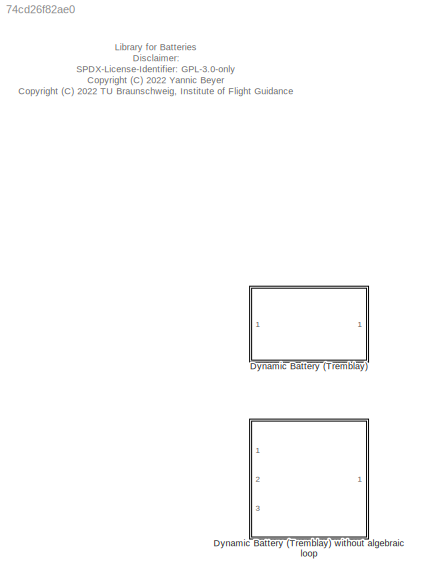
MODEL slx_74cd26f82ae0
KIND library
CONFIG AbsTol = auto
CONFIG EnableMultiTasking = off
CONFIG FixedStep = auto
CONFIG MaxStep = auto
CONFIG MinStep = auto
CONFIG RelTol = 1e-3
CONFIG SampleTimeConstraint = Unconstrained
CONFIG Solver = VariableStepAuto
CONFIG SolverName = VariableStepAuto
CONFIG StartTime = 0.0
CONFIG StopTime = 10.0
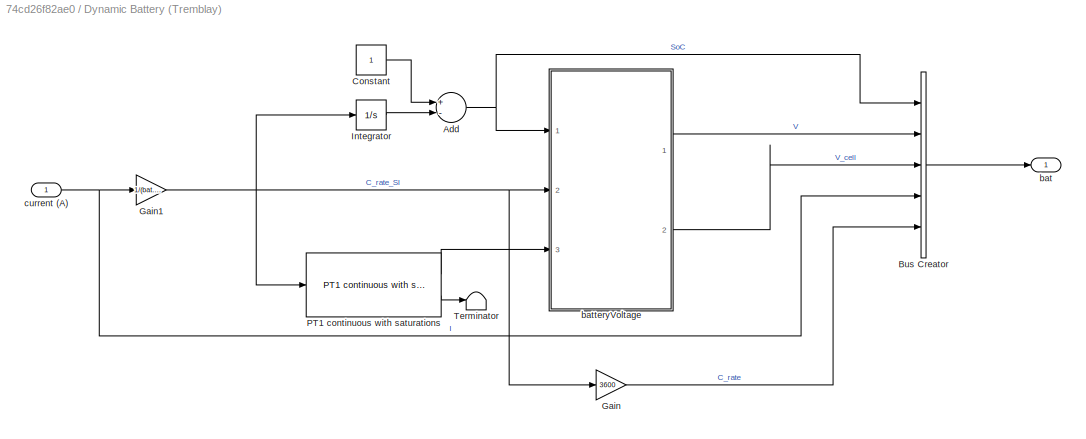
BLOCK [SubSystem] Dynamic Battery (Tremblay)
  Ports = [1, 1]
  RequestExecContextInheritance = off
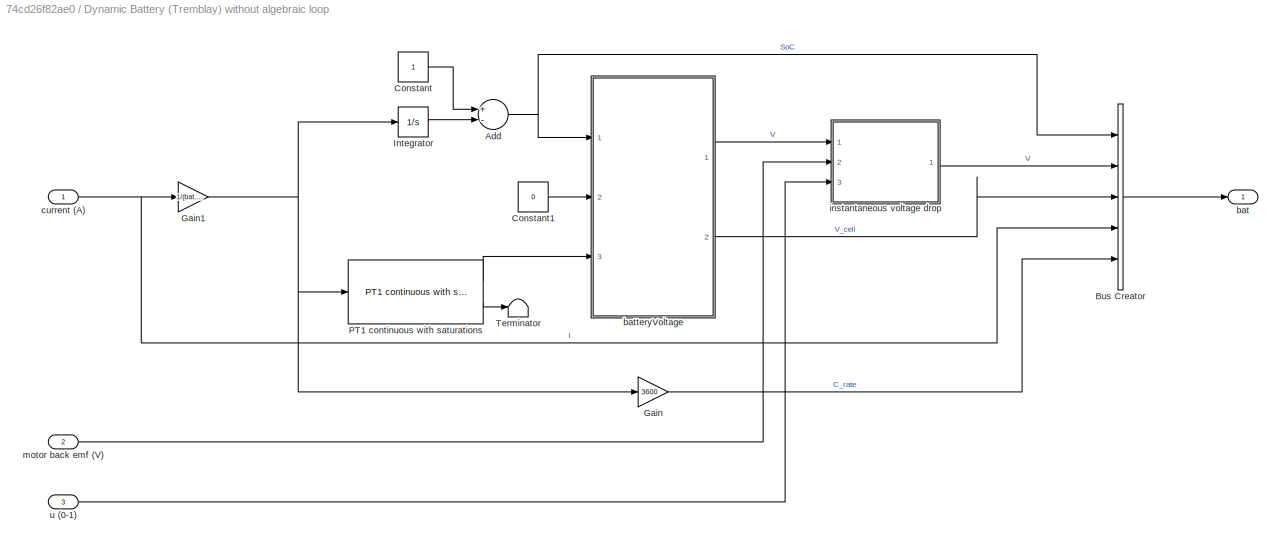
BLOCK [SubSystem] Dynamic Battery (Tremblay) without algebraic loop
  Ports = [3, 1]
  RequestExecContextInheritance = off
BLOCK [Sum] Dynamic Battery (Tremblay) without algebraic loop/Add
  InputSameDT = off
  Inputs = +-
  OutDataTypeStr = Inherit: Inherit via internal rule
  Ports = [2, 1]
  SaturateOnIntegerOverflow = off
BLOCK [BusCreator] Dynamic Battery (Tremblay) without algebraic loop/Bus Creator
  DisplayOption = bar
  InheritFromInputs = on
  Inputs = 5
  Ports = [5, 1]
BLOCK [Constant] Dynamic Battery (Tremblay) without algebraic loop/Constant
BLOCK [Constant] Dynamic Battery (Tremblay) without algebraic loop/Constant1
  Value = 0
BLOCK [Gain] Dynamic Battery (Tremblay) without algebraic loop/Gain
  Gain = 3600
  OutDataTypeStr = Inherit: Inherit via internal rule
  ParamDataTypeStr = Inherit: Inherit via internal rule
  SaturateOnIntegerOverflow = off
BLOCK [Gain] Dynamic Battery (Tremblay) without algebraic loop/Gain1
  Gain = 1/(bat.capacity * 3600)
  OutDataTypeStr = Inherit: Inherit via internal rule
  ParamDataTypeStr = Inherit: Inherit via internal rule
  SaturateOnIntegerOverflow = off
BLOCK [Integrator] Dynamic Battery (Tremblay) without algebraic loop/Integrator
  Ports = [1, 1]
BLOCK [Reference] Dynamic Battery (Tremblay) without algebraic loop/PT1 continuous with saturations  REF=filters_lib/PT1 continuous with saturations  (lib defined in slx_a584fcc4ebc5)
  Ports = [1, 2]
  SourceBlock = filters_lib/PT1 continuous with saturations
  SourceProductName = LADAC
BLOCK [Terminator] Dynamic Battery (Tremblay) without algebraic loop/Terminator
BLOCK [Outport] Dynamic Battery (Tremblay) without algebraic loop/bat
  IconDisplay = Port number
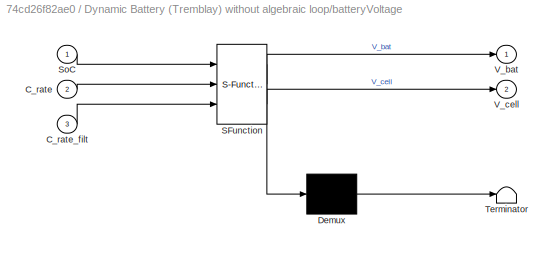
BLOCK [SubSystem] Dynamic Battery (Tremblay) without algebraic loop/batteryVoltage
  ErrorFcn = Stateflow.Translate.translate
  PermitHierarchicalResolution = ExplicitOnly
  Ports = [3, 2]
  RequestExecContextInheritance = off
  SFBlockType = MATLAB Function
  TreatAsAtomicUnit = on
BLOCK [Demux] Dynamic Battery (Tremblay) without algebraic loop/batteryVoltage/ Demux 
  Outputs = 1
  Ports = [1, 1]
BLOCK [S-Function] Dynamic Battery (Tremblay) without algebraic loop/batteryVoltage/ SFunction 
  EnableBusSupport = off
  FunctionName = sf_sfun
  Parameters = bat
  PortCounts = [3 3]
  Ports = [3, 3]
  SFcnIsStateOwnerBlock = off
  SFunctionDeploymentMode = off
  Tag = Stateflow S-Function battery_lib 3
BLOCK [Terminator] Dynamic Battery (Tremblay) without algebraic loop/batteryVoltage/ Terminator 
BLOCK [Inport] Dynamic Battery (Tremblay) without algebraic loop/batteryVoltage/C_rate
  IconDisplay = Port number
  Port = 2
BLOCK [Inport] Dynamic Battery (Tremblay) without algebraic loop/batteryVoltage/C_rate_filt
  IconDisplay = Port number
  Port = 3
BLOCK [Inport] Dynamic Battery (Tremblay) without algebraic loop/batteryVoltage/SoC
  IconDisplay = Port number
BLOCK [Outport] Dynamic Battery (Tremblay) without algebraic loop/batteryVoltage/V_bat
  IconDisplay = Port number
BLOCK [Outport] Dynamic Battery (Tremblay) without algebraic loop/batteryVoltage/V_cell
  IconDisplay = Port number
  Port = 2
BLOCK [Inport] Dynamic Battery (Tremblay) without algebraic loop/current (A)
  IconDisplay = Port number
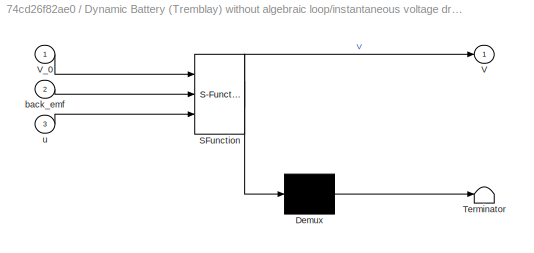
BLOCK [SubSystem] Dynamic Battery (Tremblay) without algebraic loop/instantaneous voltage drop
  ErrorFcn = Stateflow.Translate.translate
  PermitHierarchicalResolution = ExplicitOnly
  Ports = [3, 1]
  RequestExecContextInheritance = off
  SFBlockType = MATLAB Function
  TreatAsAtomicUnit = on
BLOCK [Demux] Dynamic Battery (Tremblay) without algebraic loop/instantaneous voltage drop/ Demux 
  Outputs = 1
  Ports = [1, 1]
BLOCK [S-Function] Dynamic Battery (Tremblay) without algebraic loop/instantaneous voltage drop/ SFunction 
  EnableBusSupport = on
  FunctionName = sf_sfun
  Parameters = R_mot,bat
  PortCounts = [3 2]
  Ports = [3, 2]
  SFcnIsStateOwnerBlock = off
  SFunctionDeploymentMode = off
  Tag = Stateflow S-Function battery_lib 1
BLOCK [Terminator] Dynamic Battery (Tremblay) without algebraic loop/instantaneous voltage drop/ Terminator 
BLOCK [Outport] Dynamic Battery (Tremblay) without algebraic loop/instantaneous voltage drop/V
  IconDisplay = Port number
BLOCK [Inport] Dynamic Battery (Tremblay) without algebraic loop/instantaneous voltage drop/V_0
  IconDisplay = Port number
BLOCK [Inport] Dynamic Battery (Tremblay) without algebraic loop/instantaneous voltage drop/back_emf
  IconDisplay = Port number
  Port = 2
BLOCK [Inport] Dynamic Battery (Tremblay) without algebraic loop/instantaneous voltage drop/u
  IconDisplay = Port number
  Port = 3
BLOCK [Inport] Dynamic Battery (Tremblay) without algebraic loop/motor back emf (V)
  IconDisplay = Port number
  Port = 2
BLOCK [Inport] Dynamic Battery (Tremblay) without algebraic loop/u (0-1)
  IconDisplay = Port number
  Port = 3
BLOCK [Sum] Dynamic Battery (Tremblay)/Add
  InputSameDT = off
  Inputs = +-
  OutDataTypeStr = Inherit: Inherit via internal rule
  Ports = [2, 1]
  SaturateOnIntegerOverflow = off
BLOCK [BusCreator] Dynamic Battery (Tremblay)/Bus Creator
  DisplayOption = bar
  InheritFromInputs = on
  Inputs = 5
  Ports = [5, 1]
BLOCK [Constant] Dynamic Battery (Tremblay)/Constant
BLOCK [Gain] Dynamic Battery (Tremblay)/Gain
  Gain = 3600
  OutDataTypeStr = Inherit: Inherit via internal rule
  ParamDataTypeStr = Inherit: Inherit via internal rule
  SaturateOnIntegerOverflow = off
BLOCK [Gain] Dynamic Battery (Tremblay)/Gain1
  Gain = 1/(bat.capacity * 3600)
  OutDataTypeStr = Inherit: Inherit via internal rule
  ParamDataTypeStr = Inherit: Inherit via internal rule
  SaturateOnIntegerOverflow = off
BLOCK [Integrator] Dynamic Battery (Tremblay)/Integrator
  Ports = [1, 1]
BLOCK [Reference] Dynamic Battery (Tremblay)/PT1 continuous with saturations  REF=filters_lib/PT1 continuous with saturations  (lib defined in slx_a584fcc4ebc5)
  Ports = [1, 2]
  SourceBlock = filters_lib/PT1 continuous with saturations
  SourceProductName = LADAC
BLOCK [Terminator] Dynamic Battery (Tremblay)/Terminator
BLOCK [Outport] Dynamic Battery (Tremblay)/bat
  IconDisplay = Port number
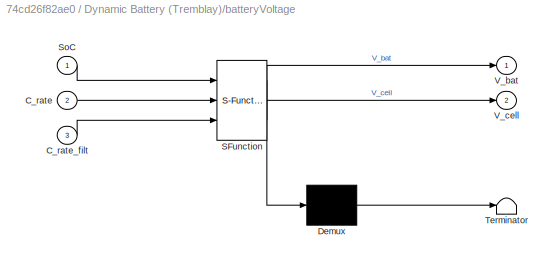
BLOCK [SubSystem] Dynamic Battery (Tremblay)/batteryVoltage
  ErrorFcn = Stateflow.Translate.translate
  PermitHierarchicalResolution = ExplicitOnly
  Ports = [3, 2]
  RequestExecContextInheritance = off
  SFBlockType = MATLAB Function
  TreatAsAtomicUnit = on
BLOCK [Demux] Dynamic Battery (Tremblay)/batteryVoltage/ Demux 
  Outputs = 1
  Ports = [1, 1]
BLOCK [S-Function] Dynamic Battery (Tremblay)/batteryVoltage/ SFunction 
  EnableBusSupport = off
  FunctionName = sf_sfun
  Parameters = bat
  PortCounts = [3 3]
  Ports = [3, 3]
  SFcnIsStateOwnerBlock = off
  SFunctionDeploymentMode = off
  Tag = Stateflow S-Function battery_lib 2
BLOCK [Terminator] Dynamic Battery (Tremblay)/batteryVoltage/ Terminator 
BLOCK [Inport] Dynamic Battery (Tremblay)/batteryVoltage/C_rate
  IconDisplay = Port number
  Port = 2
BLOCK [Inport] Dynamic Battery (Tremblay)/batteryVoltage/C_rate_filt
  IconDisplay = Port number
  Port = 3
BLOCK [Inport] Dynamic Battery (Tremblay)/batteryVoltage/SoC
  IconDisplay = Port number
BLOCK [Outport] Dynamic Battery (Tremblay)/batteryVoltage/V_bat
  IconDisplay = Port number
BLOCK [Outport] Dynamic Battery (Tremblay)/batteryVoltage/V_cell
  IconDisplay = Port number
  Port = 2
BLOCK [Inport] Dynamic Battery (Tremblay)/current (A)
  IconDisplay = Port number
ANNOTATION (root): Library for Batteries Disclaimer: SPDX-License-Identifier: GPL-3.0-only <copyright redacted>
NET Dynamic Battery (Tremblay) without algebraic loop/Add:1 -> Dynamic Battery (Tremblay) without algebraic loop/Bus Creator:1, Dynamic Battery (Tremblay) without algebraic loop/batteryVoltage:1
LINE Dynamic Battery (Tremblay) without algebraic loop/Bus Creator:1 -> Dynamic Battery (Tremblay) without algebraic loop/bat:1
LINE Dynamic Battery (Tremblay) without algebraic loop/Constant1:1 -> Dynamic Battery (Tremblay) without algebraic loop/batteryVoltage:2
LINE Dynamic Battery (Tremblay) without algebraic loop/Constant:1 -> Dynamic Battery (Tremblay) without algebraic loop/Add:1
NET Dynamic Battery (Tremblay) without algebraic loop/Gain1:1 -> Dynamic Battery (Tremblay) without algebraic loop/Gain:1, Dynamic Battery (Tremblay) without algebraic loop/Integrator:1, Dynamic Battery (Tremblay) without algebraic loop/PT1 continuous with saturations:1
LINE Dynamic Battery (Tremblay) without algebraic loop/Gain:1 -> Dynamic Battery (Tremblay) without algebraic loop/Bus Creator:5
LINE Dynamic Battery (Tremblay) without algebraic loop/Integrator:1 -> Dynamic Battery (Tremblay) without algebraic loop/Add:2
LINE Dynamic Battery (Tremblay) without algebraic loop/PT1 continuous with saturations:1 -> Dynamic Battery (Tremblay) without algebraic loop/batteryVoltage:3
LINE Dynamic Battery (Tremblay) without algebraic loop/PT1 continuous with saturations:2 -> Dynamic Battery (Tremblay) without algebraic loop/Terminator:1
LINE Dynamic Battery (Tremblay) without algebraic loop/batteryVoltage:1 -> Dynamic Battery (Tremblay) without algebraic loop/instantaneous voltage drop:1
LINE Dynamic Battery (Tremblay) without algebraic loop/batteryVoltage:2 -> Dynamic Battery (Tremblay) without algebraic loop/Bus Creator:3
NET Dynamic Battery (Tremblay) without algebraic loop/current (A):1 -> Dynamic Battery (Tremblay) without algebraic loop/Bus Creator:4, Dynamic Battery (Tremblay) without algebraic loop/Gain1:1
LINE Dynamic Battery (Tremblay) without algebraic loop/instantaneous voltage drop:1 -> Dynamic Battery (Tremblay) without algebraic loop/Bus Creator:2
LINE Dynamic Battery (Tremblay) without algebraic loop/motor back emf (V):1 -> Dynamic Battery (Tremblay) without algebraic loop/instantaneous voltage drop:2
LINE Dynamic Battery (Tremblay) without algebraic loop/u (0-1):1 -> Dynamic Battery (Tremblay) without algebraic loop/instantaneous voltage drop:3
NET Dynamic Battery (Tremblay)/Add:1 -> Dynamic Battery (Tremblay)/Bus Creator:1, Dynamic Battery (Tremblay)/batteryVoltage:1
LINE Dynamic Battery (Tremblay)/Bus Creator:1 -> Dynamic Battery (Tremblay)/bat:1
LINE Dynamic Battery (Tremblay)/Constant:1 -> Dynamic Battery (Tremblay)/Add:1
NET Dynamic Battery (Tremblay)/Gain1:1 -> Dynamic Battery (Tremblay)/Gain:1, Dynamic Battery (Tremblay)/Integrator:1, Dynamic Battery (Tremblay)/PT1 continuous with saturations:1, Dynamic Battery (Tremblay)/batteryVoltage:2
LINE Dynamic Battery (Tremblay)/Gain:1 -> Dynamic Battery (Tremblay)/Bus Creator:5
LINE Dynamic Battery (Tremblay)/Integrator:1 -> Dynamic Battery (Tremblay)/Add:2
LINE Dynamic Battery (Tremblay)/PT1 continuous with saturations:1 -> Dynamic Battery (Tremblay)/batteryVoltage:3
LINE Dynamic Battery (Tremblay)/PT1 continuous with saturations:2 -> Dynamic Battery (Tremblay)/Terminator:1
LINE Dynamic Battery (Tremblay)/batteryVoltage:1 -> Dynamic Battery (Tremblay)/Bus Creator:2
LINE Dynamic Battery (Tremblay)/batteryVoltage:2 -> Dynamic Battery (Tremblay)/Bus Creator:3
NET Dynamic Battery (Tremblay)/current (A):1 -> Dynamic Battery (Tremblay)/Bus Creator:4, Dynamic Battery (Tremblay)/Gain1:1
note: NET lines group one-source signal fan-out (src -> all destinations, sorted); 1:1 wires keep LINE
CHART Dynamic Battery (Tremblay)
without algebraic loop/instantaneous voltage drop states=1 transitions=1
  STATE_LABEL 'eML_blk_kernel()'
  STATE_LABEL 'SCRIPT:\nfunction V = fcn(V_0,back_emf,u,bat, R_mot)\nR_bat = bat.R_times_C / (bat.capacity * 3600) * bat.num_serial;\nV = (V_0+R_bat*sum(back_emf./R_mot))./(1+R_bat*sum(u./R_mot));\nend'
CHART Dynamic Battery (Tremblay)/batteryVoltage states=1 transitions=1
  STATE_LABEL 'eML_blk_kernel()'
  STATE_LABEL 'SCRIPT:\nfunction [V_bat,V_cell] = batteryVoltage(bat,SoC,C_rate,C_rate_filt)\n[V_bat,V_cell] = batteryVoltage(bat,SoC,C_rate,C_rate_filt);\nend\n'
CHART Dynamic Battery (Tremblay)
without algebraic loop/batteryVoltage states=1 transitions=1
  STATE_LABEL 'eML_blk_kernel()'
  STATE_LABEL 'SCRIPT:\nfunction [V_bat,V_cell] = batteryVoltage(bat,SoC,C_rate,C_rate_filt)\n[V_bat,V_cell] = batteryVoltage(bat,SoC,C_rate,C_rate_filt);\nend\n'
